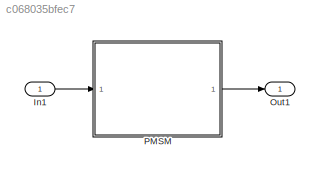
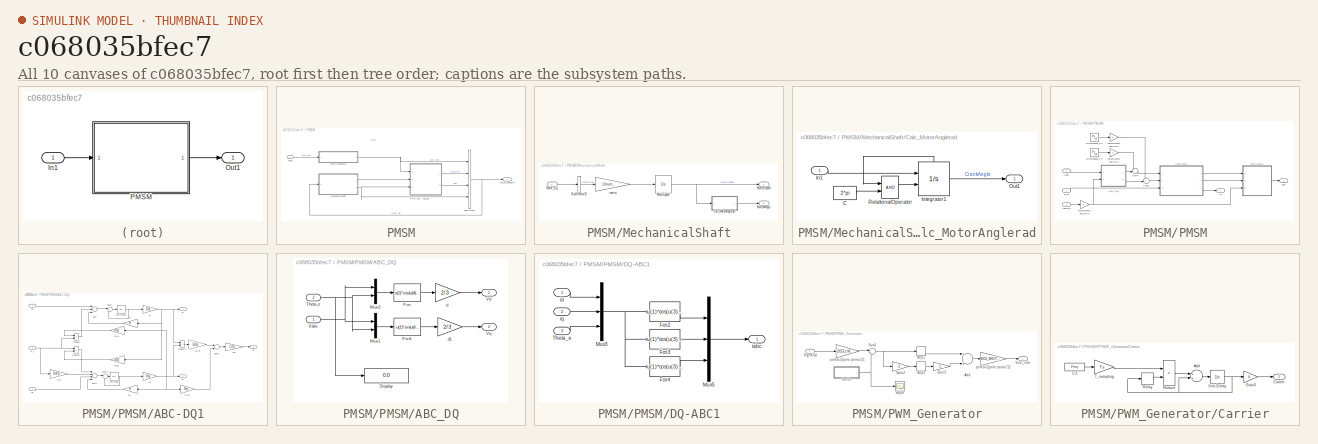
[diagram: thumbnail index - all 10 canvases of the model, root first then tree order]
MODEL slx_c068035bfec7
KIND model
BLOCK [Inport] In1
  IconDisplay = Port number
  PortDimensions = 3
BLOCK [Outport] Out1
  IconDisplay = Port number
BLOCK [SubSystem] PMSM
  Ports = [1, 1]
  RequestExecContextInheritance = off
BLOCK [BusCreator] PMSM/BusCreator
  DisplayOption = bar
  Ports = [4, 1]
BLOCK [SubSystem] PMSM/MechanicalShaft
  Ports = [1, 2]
  RequestExecContextInheritance = off
BLOCK [BusSelector] PMSM/MechanicalShaft/BusSelector10
  OutputSignals = MotorTrq
  Ports = [1, 1]
BLOCK [SubSystem] PMSM/MechanicalShaft/Calc_MotorAnglerad
  Ports = [1, 1]
  RequestExecContextInheritance = off
BLOCK [Constant] PMSM/MechanicalShaft/Calc_MotorAnglerad/C
  Value = 2*pi
BLOCK [Inport] PMSM/MechanicalShaft/Calc_MotorAnglerad/In1
  IconDisplay = Port number
BLOCK [Integrator] PMSM/MechanicalShaft/Calc_MotorAnglerad/Integrator1
  ExternalReset = rising
  Ports = [2, 1, 0, 0, 1]
  ShowStatePort = on
BLOCK [Outport] PMSM/MechanicalShaft/Calc_MotorAnglerad/Out1
  IconDisplay = Port number
BLOCK [RelationalOperator] PMSM/MechanicalShaft/Calc_MotorAnglerad/RelationalOperator
  InputSameDT = off
  OutDataTypeStr = boolean
  Ports = [2, 1]
BLOCK [Outport] PMSM/MechanicalShaft/MortorAngle
  IconDisplay = Port number
  InitialOutput = 0
  Port = 2
BLOCK [Outport] PMSM/MechanicalShaft/MortorSpeed
  IconDisplay = Port number
  InitialOutput = 0
BLOCK [Integrator] PMSM/MechanicalShaft/MotorSpeed
  LimitOutput = on
  LowerSaturationLimit = MinRev*pi/30
  Ports = [1, 1]
  UpperSaturationLimit = MaxRev*pi/30
BLOCK [Inport] PMSM/MechanicalShaft/Motor_Sig
  IconDisplay = Port number
BLOCK [Gain] PMSM/MechanicalShaft/inertia
  Gain = 1/Inertia
BLOCK [Outport] PMSM/Motor_Sigburst
  IconDisplay = Port number
  InitialOutput = 0
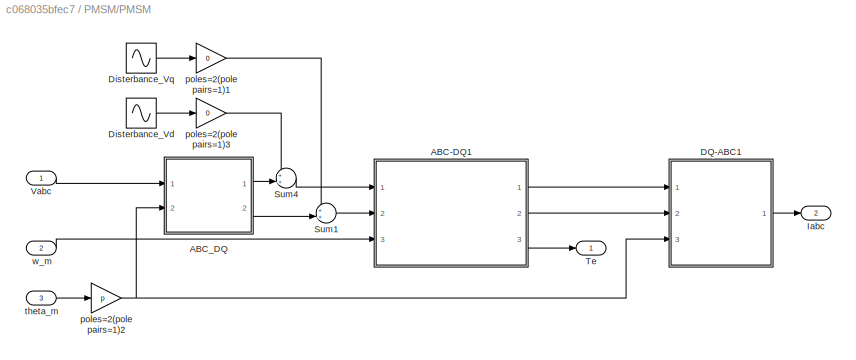
BLOCK [SubSystem] PMSM/PMSM
  Ports = [3, 2]
  RequestExecContextInheritance = off
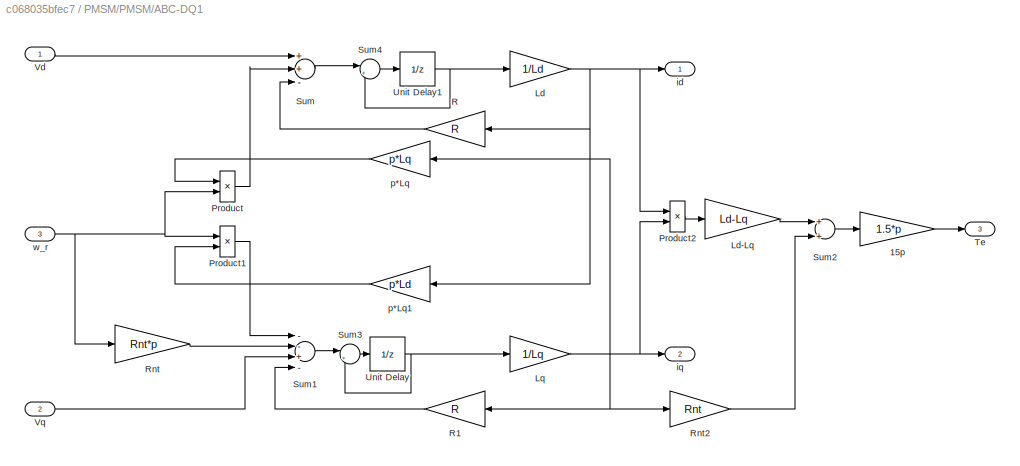
BLOCK [SubSystem] PMSM/PMSM/ABC-DQ1
  Ports = [3, 3]
  RequestExecContextInheritance = off
BLOCK [Gain] PMSM/PMSM/ABC-DQ1/15p
  Gain = 1.5*p
BLOCK [Gain] PMSM/PMSM/ABC-DQ1/Ld
  Gain = 1/Ld
BLOCK [Gain] PMSM/PMSM/ABC-DQ1/Ld-Lq
  Gain = Ld-Lq
BLOCK [Gain] PMSM/PMSM/ABC-DQ1/Lq
  Gain = 1/Lq
BLOCK [Product] PMSM/PMSM/ABC-DQ1/Product
  InputSameDT = off
  Ports = [2, 1]
  RndMeth = Floor
BLOCK [Product] PMSM/PMSM/ABC-DQ1/Product1
  InputSameDT = off
  Ports = [2, 1]
  RndMeth = Floor
BLOCK [Product] PMSM/PMSM/ABC-DQ1/Product2
  InputSameDT = off
  Ports = [2, 1]
  RndMeth = Floor
BLOCK [Gain] PMSM/PMSM/ABC-DQ1/R
  Gain = R
BLOCK [Gain] PMSM/PMSM/ABC-DQ1/R1
  Gain = R
BLOCK [Gain] PMSM/PMSM/ABC-DQ1/Rnt
  Gain = Rnt*p
BLOCK [Gain] PMSM/PMSM/ABC-DQ1/Rnt2
  Gain = Rnt
BLOCK [Sum] PMSM/PMSM/ABC-DQ1/Sum
  InputSameDT = off
  Inputs = ++-
  OutDataTypeStr = Inherit: Inherit via internal rule
  Ports = [3, 1]
BLOCK [Sum] PMSM/PMSM/ABC-DQ1/Sum1
  InputSameDT = off
  Inputs = --+-
  OutDataTypeStr = Inherit: Inherit via internal rule
  Ports = [4, 1]
BLOCK [Sum] PMSM/PMSM/ABC-DQ1/Sum2
  InputSameDT = off
  OutDataTypeStr = Inherit: Inherit via internal rule
  Ports = [2, 1]
BLOCK [Sum] PMSM/PMSM/ABC-DQ1/Sum3
  IconShape = round
  InputSameDT = off
  Inputs = |++
  OutDataTypeStr = Inherit: Inherit via internal rule
  Ports = [2, 1]
  SaturateOnIntegerOverflow = off
BLOCK [Sum] PMSM/PMSM/ABC-DQ1/Sum4
  IconShape = round
  InputSameDT = off
  Inputs = |++
  OutDataTypeStr = Inherit: Inherit via internal rule
  Ports = [2, 1]
  SaturateOnIntegerOverflow = off
BLOCK [Outport] PMSM/PMSM/ABC-DQ1/Te
  IconDisplay = Port number
  InitialOutput = 0
  Port = 3
BLOCK [UnitDelay] PMSM/PMSM/ABC-DQ1/Unit Delay
  InputProcessing = Elements as channels (sample based)
  SampleTime = -1
BLOCK [UnitDelay] PMSM/PMSM/ABC-DQ1/Unit Delay1
  InputProcessing = Elements as channels (sample based)
  SampleTime = -1
BLOCK [Inport] PMSM/PMSM/ABC-DQ1/Vd
  IconDisplay = Port number
BLOCK [Inport] PMSM/PMSM/ABC-DQ1/Vq
  IconDisplay = Port number
  Port = 2
BLOCK [Outport] PMSM/PMSM/ABC-DQ1/id
  IconDisplay = Port number
  InitialOutput = 0
BLOCK [Outport] PMSM/PMSM/ABC-DQ1/iq
  IconDisplay = Port number
  InitialOutput = 0
  Port = 2
BLOCK [Gain] PMSM/PMSM/ABC-DQ1/p*Lq
  Gain = p*Lq
BLOCK [Gain] PMSM/PMSM/ABC-DQ1/p*Lq1
  Gain = p*Ld
BLOCK [Inport] PMSM/PMSM/ABC-DQ1/w_r
  IconDisplay = Port number
  Port = 3
BLOCK [SubSystem] PMSM/PMSM/ABC_DQ
  Ports = [2, 2]
  RequestExecContextInheritance = off
BLOCK [Display] PMSM/PMSM/ABC_DQ/Display
  Decimation = 1
  Ports = [1]
BLOCK [Fcn] PMSM/PMSM/ABC_DQ/Fcn
  Expr = u(1)*cos(u(4))+u(2)*cos(u(4)-2*pi/3)+u(3)*cos(u(4)+2*pi/3)
BLOCK [Fcn] PMSM/PMSM/ABC_DQ/Fcn1
  Expr = -u(1)*sin(u(4))-u(2)*sin(u(4)-2*pi/3)-u(3)*sin(u(4)+2*pi/3)
BLOCK [Mux] PMSM/PMSM/ABC_DQ/Mux1
  DisplayOption = bar
  Inputs = 2
  Ports = [2, 1]
BLOCK [Mux] PMSM/PMSM/ABC_DQ/Mux3
  DisplayOption = bar
  Inputs = 2
  Ports = [2, 1]
BLOCK [Inport] PMSM/PMSM/ABC_DQ/Theta_e
  IconDisplay = Port number
  Port = 2
BLOCK [Inport] PMSM/PMSM/ABC_DQ/Vabc
  IconDisplay = Port number
BLOCK [Outport] PMSM/PMSM/ABC_DQ/Vd
  IconDisplay = Port number
  InitialOutput = 0
BLOCK [Outport] PMSM/PMSM/ABC_DQ/Vq
  IconDisplay = Port number
  InitialOutput = 0
  Port = 2
BLOCK [Gain] PMSM/PMSM/ABC_DQ/d
  Gain = 2/3
  SaturateOnIntegerOverflow = off
BLOCK [Gain] PMSM/PMSM/ABC_DQ/d1
  Gain = 2/3
  SaturateOnIntegerOverflow = off
BLOCK [SubSystem] PMSM/PMSM/DQ-ABC1
  Ports = [3, 1]
  RequestExecContextInheritance = off
BLOCK [Fcn] PMSM/PMSM/DQ-ABC1/Fcn2
  Expr = u(1)*cos(u(3))-u(2)*sin(u(3))
BLOCK [Fcn] PMSM/PMSM/DQ-ABC1/Fcn3
  Expr = u(1)*cos(u(3)-2*pi/3)-u(2)*sin(u(3)-2*pi/3)
BLOCK [Fcn] PMSM/PMSM/DQ-ABC1/Fcn4
  Expr = u(1)*cos(u(3)+2*pi/3)-u(2)*sin(u(3)+2*pi/3)
BLOCK [Mux] PMSM/PMSM/DQ-ABC1/Mux3
  DisplayOption = bar
  Inputs = 3
  Ports = [3, 1]
BLOCK [Mux] PMSM/PMSM/DQ-ABC1/Mux5
  DisplayOption = bar
  Inputs = 3
  Ports = [3, 1]
BLOCK [Inport] PMSM/PMSM/DQ-ABC1/Theta_e
  IconDisplay = Port number
  Port = 3
BLOCK [Outport] PMSM/PMSM/DQ-ABC1/iabc
  IconDisplay = Port number
  InitialOutput = 0
BLOCK [Inport] PMSM/PMSM/DQ-ABC1/id
  IconDisplay = Port number
BLOCK [Inport] PMSM/PMSM/DQ-ABC1/iq
  IconDisplay = Port number
  Port = 2
BLOCK [Sin] PMSM/PMSM/Disterbance_Vd
  Amplitude = 5
  Frequency = 2*pi*ff
  Ports = [0, 1]
  SampleTime = 0
BLOCK [Sin] PMSM/PMSM/Disterbance_Vq
  Amplitude = 5
  Frequency = 2*pi*ff
  Phase = pi/2
  Ports = [0, 1]
  SampleTime = 0
BLOCK [Outport] PMSM/PMSM/Iabc
  IconDisplay = Port number
  Port = 2
BLOCK [Sum] PMSM/PMSM/Sum1
  IconShape = round
  InputSameDT = off
  Inputs = ++|
  OutDataTypeStr = Inherit: Inherit via internal rule
  Ports = [2, 1]
  SaturateOnIntegerOverflow = off
BLOCK [Sum] PMSM/PMSM/Sum4
  IconShape = round
  InputSameDT = off
  Inputs = ++|
  OutDataTypeStr = Inherit: Inherit via internal rule
  Ports = [2, 1]
  SaturateOnIntegerOverflow = off
BLOCK [Outport] PMSM/PMSM/Te
  IconDisplay = Port number
BLOCK [Inport] PMSM/PMSM/Vabc
  IconDisplay = Port number
BLOCK [Gain] PMSM/PMSM/poles=2(pole pairs=1)1
  Gain = 0
  OutDataTypeStr = Inherit: Inherit via internal rule
  ParamDataTypeStr = Inherit: Inherit via internal rule
  SaturateOnIntegerOverflow = off
BLOCK [Gain] PMSM/PMSM/poles=2(pole pairs=1)2
  Gain = p
  OutDataTypeStr = Inherit: Inherit via internal rule
  ParamDataTypeStr = Inherit: Inherit via internal rule
  SaturateOnIntegerOverflow = off
BLOCK [Gain] PMSM/PMSM/poles=2(pole pairs=1)3
  Gain = 0
  OutDataTypeStr = Inherit: Inherit via internal rule
  ParamDataTypeStr = Inherit: Inherit via internal rule
  SaturateOnIntegerOverflow = off
BLOCK [Inport] PMSM/PMSM/theta_m
  IconDisplay = Port number
  Port = 3
BLOCK [Inport] PMSM/PMSM/w_m
  IconDisplay = Port number
  Port = 2
BLOCK [SubSystem] PMSM/PWM_Generator
  Ports = [1, 1]
  RequestExecContextInheritance = off
BLOCK [Sum] PMSM/PWM_Generator/Add
  InputSameDT = off
  OutDataTypeStr = Inherit: Inherit via internal rule
  Ports = [2, 1]
  SaturateOnIntegerOverflow = off
BLOCK [SubSystem] PMSM/PWM_Generator/Carrier
  Ports = [0, 1]
  RequestExecContextInheritance = off
BLOCK [Sum] PMSM/PWM_Generator/Carrier/Add
  InputSameDT = off
  OutDataTypeStr = Inherit: Inherit via internal rule
  Ports = [2, 1]
  SaturateOnIntegerOverflow = off
BLOCK [Constant] PMSM/PWM_Generator/Carrier/C2
  Value = Freq
BLOCK [Outport] PMSM/PWM_Generator/Carrier/Carrier
  IconDisplay = Port number
BLOCK [Gain] PMSM/PWM_Generator/Carrier/Gain3
  Gain = 4
  OutDataTypeStr = double
  ParamDataTypeStr = Inherit: Inherit via internal rule
  SaturateOnIntegerOverflow = off
BLOCK [Product] PMSM/PWM_Generator/Carrier/Product
  InputSameDT = off
  OutDataTypeStr = Inherit: Inherit via internal rule
  Ports = [2, 1]
  SaturateOnIntegerOverflow = off
BLOCK [Relay] PMSM/PWM_Generator/Carrier/Relay
  OffOutputValue = 1
  OffSwitchValue = -0.25
  OnOutputValue = -1
  OnSwitchValue = 0.25
BLOCK [Gain] PMSM/PWM_Generator/Carrier/T_sampling
  Gain = Ts
  OutDataTypeStr = Inherit: Inherit via internal rule
  ParamDataTypeStr = Inherit: Inherit via internal rule
  SaturateOnIntegerOverflow = off
BLOCK [UnitDelay] PMSM/PWM_Generator/Carrier/Unit Delay
  SampleTime = -1
BLOCK [Gain] PMSM/PWM_Generator/Gain2
  Gain = -1
  OutDataTypeStr = double
  ParamDataTypeStr = Inherit: Inherit via internal rule
  SaturateOnIntegerOverflow = off
BLOCK [Gain] PMSM/PWM_Generator/Gain3
  Gain = -1
  OutDataTypeStr = double
  ParamDataTypeStr = Inherit: Inherit via internal rule
  SaturateOnIntegerOverflow = off
BLOCK [Scope] PMSM/PWM_Generator/Scope
  DataFormat = StructureWithTime
  Floating = off
  LimitDataPoints = off
  NumInputPorts = 1
  Ports = [1]
  SampleTime = 0
  ShowLegends = off
  ZoomMode = xonly
BLOCK [Inport] PMSM/PWM_Generator/Signal(s)
  IconDisplay = Port number
BLOCK [Sum] PMSM/PWM_Generator/Sum1
  IconShape = round
  Inputs = |+-
  Ports = [2, 1]
BLOCK [Outport] PMSM/PWM_Generator/Vout_uvm
  IconDisplay = Port number
BLOCK [Gain] PMSM/PWM_Generator/poles=2(pole pairs=1)1
  Gain = 1/ECU_MOTOR.VDC
  OutDataTypeStr = Inherit: Inherit via internal rule
  ParamDataTypeStr = Inherit: Inherit via internal rule
  SaturateOnIntegerOverflow = off
BLOCK [Gain] PMSM/PWM_Generator/poles=2(pole pairs=1)2
  Gain = ECU_MOTOR.VDC
  OutDataTypeStr = Inherit: Inherit via internal rule
  ParamDataTypeStr = Inherit: Inherit via internal rule
  SaturateOnIntegerOverflow = off
BLOCK [Relay] PMSM/PWM_Generator/step1
  OnSwitchValue = ECU_MOTOR.dvsw
BLOCK [Relay] PMSM/PWM_Generator/step2
  OnSwitchValue = ECU_MOTOR.dvsw
BLOCK [Inport] PMSM/Vuvw
  IconDisplay = Port number
ANNOTATION PMSM: Motor
LINE In1:1 -> PMSM:1
NET PMSM/BusCreator:1 -> PMSM/MechanicalShaft:1, PMSM/Motor_Sigburst:1
LINE PMSM/MechanicalShaft/BusSelector10:1 -> PMSM/MechanicalShaft/inertia:1
LINE PMSM/MechanicalShaft/Calc_MotorAnglerad/C:1 -> PMSM/MechanicalShaft/Calc_MotorAnglerad/RelationalOperator:2
LINE PMSM/MechanicalShaft/Calc_MotorAnglerad/In1:1 -> PMSM/MechanicalShaft/Calc_MotorAnglerad/Integrator1:1
LINE PMSM/MechanicalShaft/Calc_MotorAnglerad/Integrator1:1 -> PMSM/MechanicalShaft/Calc_MotorAnglerad/Out1:1
LINE PMSM/MechanicalShaft/Calc_MotorAnglerad/Integrator1:state -> PMSM/MechanicalShaft/Calc_MotorAnglerad/RelationalOperator:1
LINE PMSM/MechanicalShaft/Calc_MotorAnglerad/RelationalOperator:1 -> PMSM/MechanicalShaft/Calc_MotorAnglerad/Integrator1:2
LINE PMSM/MechanicalShaft/Calc_MotorAnglerad:1 -> PMSM/MechanicalShaft/MortorAngle:1
NET PMSM/MechanicalShaft/MotorSpeed:1 -> PMSM/MechanicalShaft/Calc_MotorAnglerad:1, PMSM/MechanicalShaft/MortorSpeed:1
LINE PMSM/MechanicalShaft/Motor_Sig:1 -> PMSM/MechanicalShaft/BusSelector10:1
LINE PMSM/MechanicalShaft/inertia:1 -> PMSM/MechanicalShaft/MotorSpeed:1
LINE PMSM/MechanicalShaft:1 -> PMSM/PMSM:2
NET PMSM/MechanicalShaft:2 -> PMSM/BusCreator:4, PMSM/PMSM:3
LINE PMSM/PMSM/ABC-DQ1/15p:1 -> PMSM/PMSM/ABC-DQ1/Te:1
LINE PMSM/PMSM/ABC-DQ1/Ld-Lq:1 -> PMSM/PMSM/ABC-DQ1/Sum2:1
NET PMSM/PMSM/ABC-DQ1/Ld:1 -> PMSM/PMSM/ABC-DQ1/Product2:1, PMSM/PMSM/ABC-DQ1/R:1, PMSM/PMSM/ABC-DQ1/id:1, PMSM/PMSM/ABC-DQ1/p*Lq1:1
NET PMSM/PMSM/ABC-DQ1/Lq:1 -> PMSM/PMSM/ABC-DQ1/Product2:2, PMSM/PMSM/ABC-DQ1/R1:1, PMSM/PMSM/ABC-DQ1/Rnt2:1, PMSM/PMSM/ABC-DQ1/iq:1, PMSM/PMSM/ABC-DQ1/p*Lq:1
LINE PMSM/PMSM/ABC-DQ1/Product1:1 -> PMSM/PMSM/ABC-DQ1/Sum1:1
LINE PMSM/PMSM/ABC-DQ1/Product2:1 -> PMSM/PMSM/ABC-DQ1/Ld-Lq:1
LINE PMSM/PMSM/ABC-DQ1/Product:1 -> PMSM/PMSM/ABC-DQ1/Sum:2
LINE PMSM/PMSM/ABC-DQ1/R1:1 -> PMSM/PMSM/ABC-DQ1/Sum1:4
LINE PMSM/PMSM/ABC-DQ1/R:1 -> PMSM/PMSM/ABC-DQ1/Sum:3
LINE PMSM/PMSM/ABC-DQ1/Rnt2:1 -> PMSM/PMSM/ABC-DQ1/Sum2:2
LINE PMSM/PMSM/ABC-DQ1/Rnt:1 -> PMSM/PMSM/ABC-DQ1/Sum1:2
LINE PMSM/PMSM/ABC-DQ1/Sum1:1 -> PMSM/PMSM/ABC-DQ1/Sum3:1
LINE PMSM/PMSM/ABC-DQ1/Sum2:1 -> PMSM/PMSM/ABC-DQ1/15p:1
LINE PMSM/PMSM/ABC-DQ1/Sum3:1 -> PMSM/PMSM/ABC-DQ1/Unit Delay:1
LINE PMSM/PMSM/ABC-DQ1/Sum4:1 -> PMSM/PMSM/ABC-DQ1/Unit Delay1:1
LINE PMSM/PMSM/ABC-DQ1/Sum:1 -> PMSM/PMSM/ABC-DQ1/Sum4:1
NET PMSM/PMSM/ABC-DQ1/Unit Delay1:1 -> PMSM/PMSM/ABC-DQ1/Ld:1, PMSM/PMSM/ABC-DQ1/Sum4:2
NET PMSM/PMSM/ABC-DQ1/Unit Delay:1 -> PMSM/PMSM/ABC-DQ1/Lq:1, PMSM/PMSM/ABC-DQ1/Sum3:2
LINE PMSM/PMSM/ABC-DQ1/Vd:1 -> PMSM/PMSM/ABC-DQ1/Sum:1
LINE PMSM/PMSM/ABC-DQ1/Vq:1 -> PMSM/PMSM/ABC-DQ1/Sum1:3
LINE PMSM/PMSM/ABC-DQ1/p*Lq1:1 -> PMSM/PMSM/ABC-DQ1/Product1:2
LINE PMSM/PMSM/ABC-DQ1/p*Lq:1 -> PMSM/PMSM/ABC-DQ1/Product:1
NET PMSM/PMSM/ABC-DQ1/w_r:1 -> PMSM/PMSM/ABC-DQ1/Product1:1, PMSM/PMSM/ABC-DQ1/Product:2, PMSM/PMSM/ABC-DQ1/Rnt:1
LINE PMSM/PMSM/ABC-DQ1:1 -> PMSM/PMSM/DQ-ABC1:1
LINE PMSM/PMSM/ABC-DQ1:2 -> PMSM/PMSM/DQ-ABC1:2
LINE PMSM/PMSM/ABC-DQ1:3 -> PMSM/PMSM/Te:1
LINE PMSM/PMSM/ABC_DQ/Fcn1:1 -> PMSM/PMSM/ABC_DQ/d1:1
LINE PMSM/PMSM/ABC_DQ/Fcn:1 -> PMSM/PMSM/ABC_DQ/d:1
LINE PMSM/PMSM/ABC_DQ/Mux1:1 -> PMSM/PMSM/ABC_DQ/Fcn1:1
LINE PMSM/PMSM/ABC_DQ/Mux3:1 -> PMSM/PMSM/ABC_DQ/Fcn:1
NET PMSM/PMSM/ABC_DQ/Theta_e:1 -> PMSM/PMSM/ABC_DQ/Display:1, PMSM/PMSM/ABC_DQ/Mux1:2, PMSM/PMSM/ABC_DQ/Mux3:2
NET PMSM/PMSM/ABC_DQ/Vabc:1 -> PMSM/PMSM/ABC_DQ/Mux1:1, PMSM/PMSM/ABC_DQ/Mux3:1
LINE PMSM/PMSM/ABC_DQ/d1:1 -> PMSM/PMSM/ABC_DQ/Vq:1
LINE PMSM/PMSM/ABC_DQ/d:1 -> PMSM/PMSM/ABC_DQ/Vd:1
LINE PMSM/PMSM/ABC_DQ:1 -> PMSM/PMSM/Sum4:2
LINE PMSM/PMSM/ABC_DQ:2 -> PMSM/PMSM/Sum1:2
LINE PMSM/PMSM/DQ-ABC1/Fcn2:1 -> PMSM/PMSM/DQ-ABC1/Mux5:1
LINE PMSM/PMSM/DQ-ABC1/Fcn3:1 -> PMSM/PMSM/DQ-ABC1/Mux5:2
LINE PMSM/PMSM/DQ-ABC1/Fcn4:1 -> PMSM/PMSM/DQ-ABC1/Mux5:3
NET PMSM/PMSM/DQ-ABC1/Mux3:1 -> PMSM/PMSM/DQ-ABC1/Fcn2:1, PMSM/PMSM/DQ-ABC1/Fcn3:1, PMSM/PMSM/DQ-ABC1/Fcn4:1
LINE PMSM/PMSM/DQ-ABC1/Mux5:1 -> PMSM/PMSM/DQ-ABC1/iabc:1
LINE PMSM/PMSM/DQ-ABC1/Theta_e:1 -> PMSM/PMSM/DQ-ABC1/Mux3:3
LINE PMSM/PMSM/DQ-ABC1/id:1 -> PMSM/PMSM/DQ-ABC1/Mux3:1
LINE PMSM/PMSM/DQ-ABC1/iq:1 -> PMSM/PMSM/DQ-ABC1/Mux3:2
LINE PMSM/PMSM/DQ-ABC1:1 -> PMSM/PMSM/Iabc:1
LINE PMSM/PMSM/Disterbance_Vd:1 -> PMSM/PMSM/poles=2(pole pairs=1)3:1
LINE PMSM/PMSM/Disterbance_Vq:1 -> PMSM/PMSM/poles=2(pole pairs=1)1:1
LINE PMSM/PMSM/Sum1:1 -> PMSM/PMSM/ABC-DQ1:2
LINE PMSM/PMSM/Sum4:1 -> PMSM/PMSM/ABC-DQ1:1
LINE PMSM/PMSM/Vabc:1 -> PMSM/PMSM/ABC_DQ:1
LINE PMSM/PMSM/poles=2(pole pairs=1)1:1 -> PMSM/PMSM/Sum1:1
NET PMSM/PMSM/poles=2(pole pairs=1)2:1 -> PMSM/PMSM/ABC_DQ:2, PMSM/PMSM/DQ-ABC1:3
LINE PMSM/PMSM/poles=2(pole pairs=1)3:1 -> PMSM/PMSM/Sum4:1
LINE PMSM/PMSM/theta_m:1 -> PMSM/PMSM/poles=2(pole pairs=1)2:1
LINE PMSM/PMSM/w_m:1 -> PMSM/PMSM/ABC-DQ1:3
LINE PMSM/PMSM:1 -> PMSM/BusCreator:2
LINE PMSM/PMSM:2 -> PMSM/BusCreator:3
LINE PMSM/PWM_Generator/Add:1 -> PMSM/PWM_Generator/poles=2(pole pairs=1)2:1
LINE PMSM/PWM_Generator/Carrier/Add:1 -> PMSM/PWM_Generator/Carrier/Unit Delay:1
LINE PMSM/PWM_Generator/Carrier/C2:1 -> PMSM/PWM_Generator/Carrier/T_sampling:1
LINE PMSM/PWM_Generator/Carrier/Gain3:1 -> PMSM/PWM_Generator/Carrier/Carrier:1
LINE PMSM/PWM_Generator/Carrier/Product:1 -> PMSM/PWM_Generator/Carrier/Add:1
LINE PMSM/PWM_Generator/Carrier/Relay:1 -> PMSM/PWM_Generator/Carrier/Product:2
LINE PMSM/PWM_Generator/Carrier/T_sampling:1 -> PMSM/PWM_Generator/Carrier/Product:1
NET PMSM/PWM_Generator/Carrier/Unit Delay:1 -> PMSM/PWM_Generator/Carrier/Add:2, PMSM/PWM_Generator/Carrier/Gain3:1, PMSM/PWM_Generator/Carrier/Relay:1
NET PMSM/PWM_Generator/Carrier:1 -> PMSM/PWM_Generator/Scope:1, PMSM/PWM_Generator/Sum1:2
LINE PMSM/PWM_Generator/Gain2:1 -> PMSM/PWM_Generator/step2:1
LINE PMSM/PWM_Generator/Gain3:1 -> PMSM/PWM_Generator/Add:2
LINE PMSM/PWM_Generator/Signal(s):1 -> PMSM/PWM_Generator/poles=2(pole pairs=1)1:1
NET PMSM/PWM_Generator/Sum1:1 -> PMSM/PWM_Generator/Gain2:1, PMSM/PWM_Generator/step1:1
LINE PMSM/PWM_Generator/poles=2(pole pairs=1)1:1 -> PMSM/PWM_Generator/Sum1:1
LINE PMSM/PWM_Generator/poles=2(pole pairs=1)2:1 -> PMSM/PWM_Generator/Vout_uvm:1
LINE PMSM/PWM_Generator/step1:1 -> PMSM/PWM_Generator/Add:1
LINE PMSM/PWM_Generator/step2:1 -> PMSM/PWM_Generator/Gain3:1
NET PMSM/PWM_Generator:1 -> PMSM/BusCreator:1, PMSM/PMSM:1
LINE PMSM/Vuvw:1 -> PMSM/PWM_Generator:1
LINE PMSM:1 -> Out1:1
note: NET lines group one-source signal fan-out (src -> all destinations, sorted); 1:1 wires keep LINE
